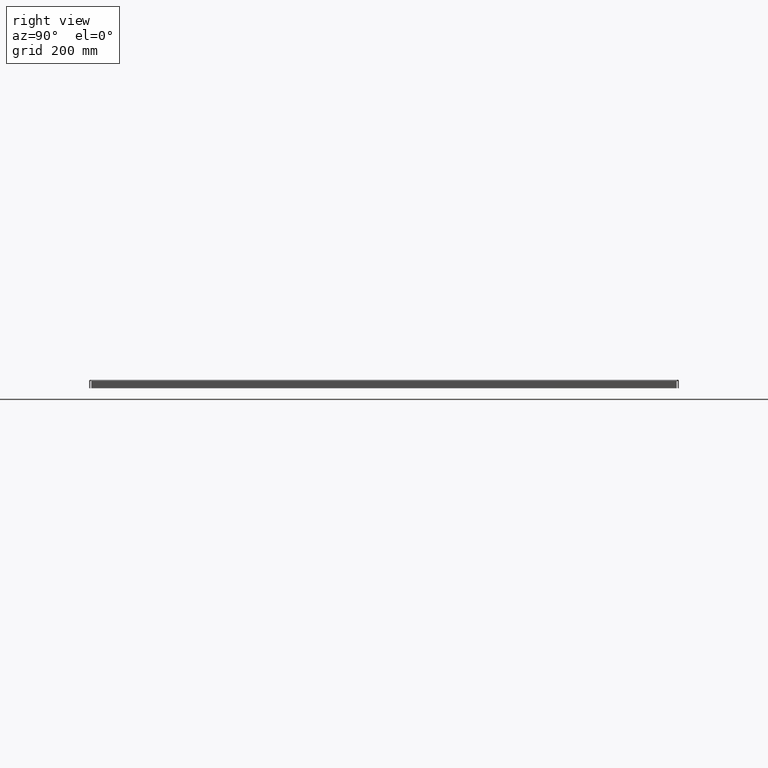
[diagram: clean part render]
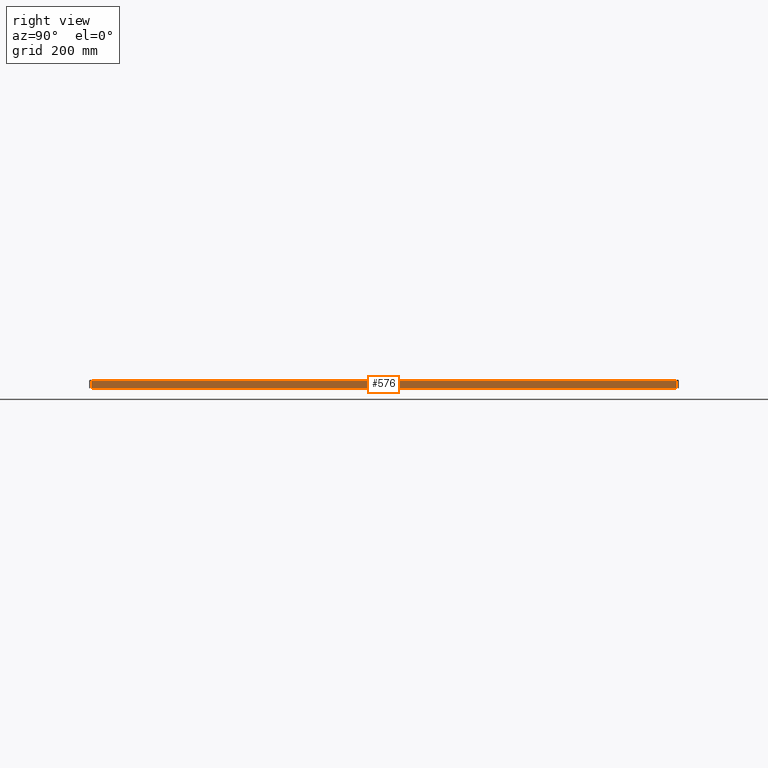
[diagram: same view with one face highlighted and labeled with its STEP entity id]
A machine part, right view. The second image highlights one B-rep face of the part: STEP entity #576.
In plain terms, the highlighted planar face has unit normal (1, 0, 0).
Its self-contained STEP definition (entity closure, byte-faithful):
#303=CARTESIAN_POINT('',(43.999999999999986,59.786611652351674,-0.015599999999968));
#304=VERTEX_POINT('',#303);
#305=CARTESIAN_POINT('',(44.000000000000014,0.213388347648325,-0.015599999999985));
#306=VERTEX_POINT('',#305);
#307=CARTESIAN_POINT('',(43.999999999999993,59.786611652351674,-0.015599999999985));
#308=DIRECTION('',(0.0,-1.0,0.0));
#309=VECTOR('',#308,59.573223304703347);
#310=LINE('',#307,#309);
#311=EDGE_CURVE('',#304,#306,#310,.T.);
#391=CARTESIAN_POINT('',(44.000000000000064,0.213388347648329,-0.749999999999989));
#392=VERTEX_POINT('',#391);
#393=CARTESIAN_POINT('',(44.000000000000057,0.213388347648329,-0.749999999999989));
#394=DIRECTION('',(0.0,0.0,1.0));
#395=VECTOR('',#394,0.734399999999999);
#396=LINE('',#393,#395);
#397=EDGE_CURVE('',#392,#306,#396,.T.);
#529=CARTESIAN_POINT('',(44.000000000000036,59.786611652351674,-0.749999999999967));
#530=VERTEX_POINT('',#529);
#531=CARTESIAN_POINT('',(43.999999999999979,59.786611652351674,-0.015599999999968));
#532=DIRECTION('',(0.0,0.0,-1.0));
#533=VECTOR('',#532,0.734399999999999);
#534=LINE('',#531,#533);
#535=EDGE_CURVE('',#304,#530,#534,.T.);
#553=CARTESIAN_POINT('',(44.000000000000028,59.786611652351674,-0.749999999999967));
#554=DIRECTION('',(0.0,-1.0,0.0));
#555=VECTOR('',#554,59.57322330470334);
#556=LINE('',#553,#555);
#557=EDGE_CURVE('',#530,#392,#556,.T.);
#565=CARTESIAN_POINT('',(44.000000000000021,29.999999999999996,-0.338477516194002));
#566=DIRECTION('',(1.0,0.0,0.0));
#567=DIRECTION('',(0.0,0.0,-1.0));
#568=AXIS2_PLACEMENT_3D('',#565,#566,#567);
#569=PLANE('',#568);
#570=ORIENTED_EDGE('',*,*,#311,.T.);
#571=ORIENTED_EDGE('',*,*,#397,.F.);
#572=ORIENTED_EDGE('',*,*,#557,.F.);
#573=ORIENTED_EDGE('',*,*,#535,.F.);
#574=EDGE_LOOP('',(#570,#571,#572,#573));
#575=FACE_OUTER_BOUND('',#574,.T.);
#576=ADVANCED_FACE('',(#575),#569,.T.);